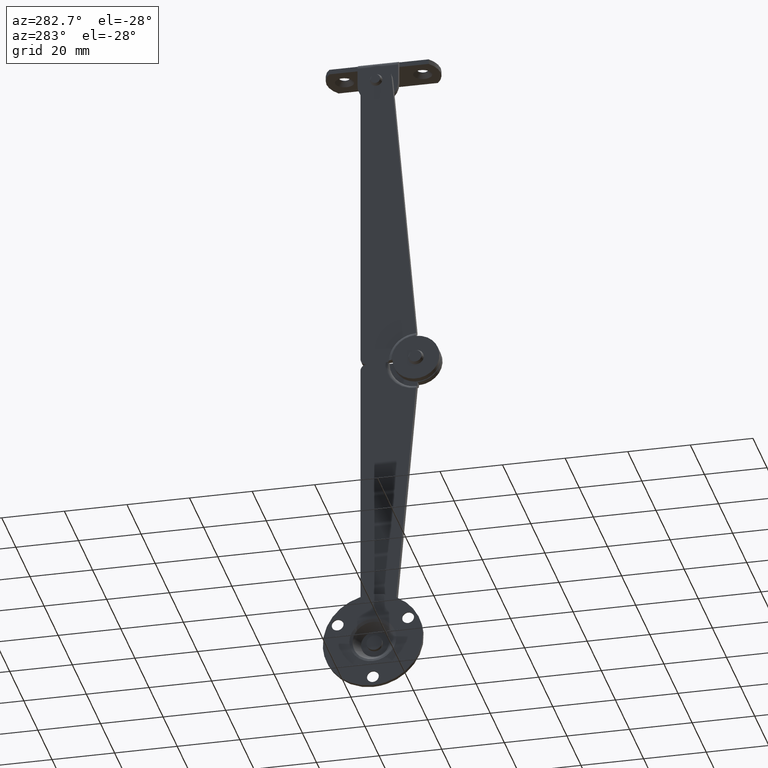
[diagram: clean part render]
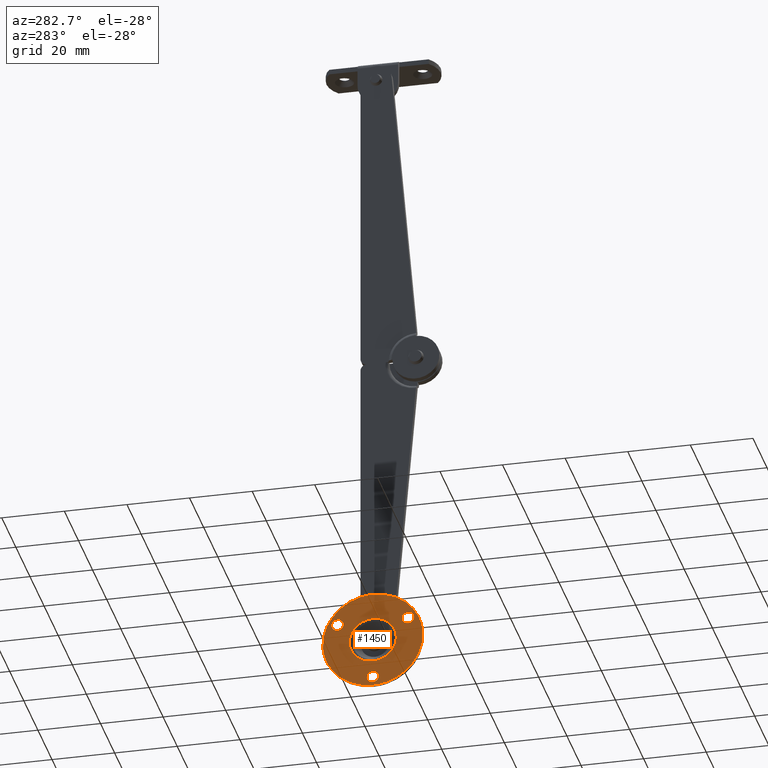
[diagram: same view with one face highlighted and labeled with its STEP entity id]
A machine part, auxiliary view. The second image highlights one B-rep face of the part: STEP entity #1450.
In plain terms, the highlighted face is a freeform B-spline surface patch.
Its self-contained STEP definition (entity closure, byte-faithful):
#388=CARTESIAN_POINT('',(2.428613E-017,-0.152473200685250,-93.350935568531526));
#389=VERTEX_POINT('',#388);
#395=CARTESIAN_POINT('',(0.0,1.741669750802305,-91.600007629394597));
#396=VERTEX_POINT('',#395);
#397=CARTESIAN_POINT('',(0.0,1.741669750802305,-91.600007629394597));
#398=CARTESIAN_POINT('',(0.0,-0.014672388922405,-91.600007629394582));
#399=CARTESIAN_POINT('',(0.0,-0.152473200685263,-93.350935568531526));
#407=(BOUNDED_CURVE()B_SPLINE_CURVE(2,(#397,#398,#399),.UNSPECIFIED.,.F.,.U.)B_SPLINE_CURVE_WITH_KNOTS((3,3),(0.0,0.236331320635593),.UNSPECIFIED.)CURVE()GEOMETRIC_REPRESENTATION_ITEM()RATIONAL_B_SPLINE_CURVE((1.0,0.723120635170428,0.969723397916191))REPRESENTATION_ITEM(''));
#408=EDGE_CURVE('',#396,#389,#407,.T.);
#410=CARTESIAN_POINT('',(-1.084202E-017,3.635812702289861,-93.649079690257665));
#411=VERTEX_POINT('',#410);
#412=CARTESIAN_POINT('',(0.0,3.635812702289875,-93.649079690257679));
#413=CARTESIAN_POINT('',(0.0,3.641669750802305,-93.574658721686419));
#414=CARTESIAN_POINT('',(0.0,3.641669750802305,-93.500007629394602));
#415=CARTESIAN_POINT('',(0.0,3.641669750802306,-91.600007629394597));
#416=CARTESIAN_POINT('',(0.0,1.741669750802305,-91.600007629394597));
#424=(BOUNDED_CURVE()B_SPLINE_CURVE(2,(#412,#413,#414,#415,#416),.UNSPECIFIED.,.F.,.U.)B_SPLINE_CURVE_WITH_KNOTS((3,2,3),(0.736331320635594,0.750000000000000,1.0),.UNSPECIFIED.)CURVE()GEOMETRIC_REPRESENTATION_ITEM()RATIONAL_B_SPLINE_CURVE((0.969723397916194,0.983986146016121,1.0,0.707106781186547,1.0))REPRESENTATION_ITEM(''));
#425=EDGE_CURVE('',#411,#396,#424,.T.);
#505=CARTESIAN_POINT('',(0.0,1.741669750802305,-95.400007629394594));
#506=VERTEX_POINT('',#505);
#507=CARTESIAN_POINT('',(0.0,1.741669750802305,-95.400007629394594));
#508=CARTESIAN_POINT('',(0.0,3.498011890527033,-95.400007629394594));
#509=CARTESIAN_POINT('',(0.0,3.635812702289874,-93.649079690257665));
#517=(BOUNDED_CURVE()B_SPLINE_CURVE(2,(#507,#508,#509),.UNSPECIFIED.,.F.,.U.)B_SPLINE_CURVE_WITH_KNOTS((3,3),(0.500000000000000,0.736331320635595),.UNSPECIFIED.)CURVE()GEOMETRIC_REPRESENTATION_ITEM()RATIONAL_B_SPLINE_CURVE((1.0,0.723120635170426,0.969723397916195))REPRESENTATION_ITEM(''));
#518=EDGE_CURVE('',#506,#411,#517,.T.);
#520=CARTESIAN_POINT('',(0.0,-0.152473200685263,-93.350935568531511));
#521=CARTESIAN_POINT('',(0.0,-0.158330249197695,-93.425356537102772));
#522=CARTESIAN_POINT('',(0.0,-0.158330249197695,-93.500007629394602));
#523=CARTESIAN_POINT('',(0.0,-0.158330249197695,-95.400007629394594));
#524=CARTESIAN_POINT('',(0.0,1.741669750802305,-95.400007629394594));
#532=(BOUNDED_CURVE()B_SPLINE_CURVE(2,(#520,#521,#522,#523,#524),.UNSPECIFIED.,.F.,.U.)B_SPLINE_CURVE_WITH_KNOTS((3,2,3),(0.236331320635593,0.250000000000000,0.500000000000000),.UNSPECIFIED.)CURVE()GEOMETRIC_REPRESENTATION_ITEM()RATIONAL_B_SPLINE_CURVE((0.969723397916192,0.983986146016119,1.0,0.707106781186547,1.0))REPRESENTATION_ITEM(''));
#533=EDGE_CURVE('',#389,#506,#532,.T.);
#578=CARTESIAN_POINT('',(6.938894E-018,22.364187297710149,-93.350935568531526));
#579=VERTEX_POINT('',#578);
#585=CARTESIAN_POINT('',(0.0,24.258330249197702,-91.600007629394597));
#586=VERTEX_POINT('',#585);
#587=CARTESIAN_POINT('',(0.0,24.258330249197702,-91.600007629394597));
#588=CARTESIAN_POINT('',(0.0,22.501988109472993,-91.600007629394597));
#589=CARTESIAN_POINT('',(0.0,22.364187297710131,-93.350935568531511));
#597=(BOUNDED_CURVE()B_SPLINE_CURVE(2,(#587,#588,#589),.UNSPECIFIED.,.F.,.U.)B_SPLINE_CURVE_WITH_KNOTS((3,3),(0.0,0.236331320635593),.UNSPECIFIED.)CURVE()GEOMETRIC_REPRESENTATION_ITEM()RATIONAL_B_SPLINE_CURVE((1.0,0.723120635170428,0.969723397916192))REPRESENTATION_ITEM(''));
#598=EDGE_CURVE('',#586,#579,#597,.T.);
#600=CARTESIAN_POINT('',(-2.818926E-017,26.152473200685261,-93.649079690257665));
#601=VERTEX_POINT('',#600);
#602=CARTESIAN_POINT('',(0.0,26.152473200685268,-93.649079690257679));
#603=CARTESIAN_POINT('',(0.0,26.158330249197697,-93.574658721686419));
#604=CARTESIAN_POINT('',(0.0,26.158330249197700,-93.500007629394602));
#605=CARTESIAN_POINT('',(0.0,26.158330249197711,-91.600007629394597));
#606=CARTESIAN_POINT('',(0.0,24.258330249197702,-91.600007629394597));
#614=(BOUNDED_CURVE()B_SPLINE_CURVE(2,(#602,#603,#604,#605,#606),.UNSPECIFIED.,.F.,.U.)B_SPLINE_CURVE_WITH_KNOTS((3,2,3),(0.736331320635594,0.750000000000000,1.0),.UNSPECIFIED.)CURVE()GEOMETRIC_REPRESENTATION_ITEM()RATIONAL_B_SPLINE_CURVE((0.969723397916194,0.983986146016121,1.0,0.707106781186547,1.0))REPRESENTATION_ITEM(''));
#615=EDGE_CURVE('',#601,#586,#614,.T.);
#695=CARTESIAN_POINT('',(0.0,24.258330249197702,-95.400007629394594));
#696=VERTEX_POINT('',#695);
#697=CARTESIAN_POINT('',(0.0,24.258330249197702,-95.400007629394594));
#698=CARTESIAN_POINT('',(0.0,26.014672388922442,-95.400007629394594));
#699=CARTESIAN_POINT('',(0.0,26.152473200685272,-93.649079690257665));
#707=(BOUNDED_CURVE()B_SPLINE_CURVE(2,(#697,#698,#699),.UNSPECIFIED.,.F.,.U.)B_SPLINE_CURVE_WITH_KNOTS((3,3),(0.500000000000000,0.736331320635595),.UNSPECIFIED.)CURVE()GEOMETRIC_REPRESENTATION_ITEM()RATIONAL_B_SPLINE_CURVE((1.0,0.723120635170426,0.969723397916195))REPRESENTATION_ITEM(''));
#708=EDGE_CURVE('',#696,#601,#707,.T.);
#710=CARTESIAN_POINT('',(0.0,22.364187297710139,-93.350935568531511));
#711=CARTESIAN_POINT('',(0.0,22.358330249197703,-93.425356537102786));
#712=CARTESIAN_POINT('',(0.0,22.358330249197699,-93.500007629394602));
#713=CARTESIAN_POINT('',(0.0,22.358330249197710,-95.400007629394594));
#714=CARTESIAN_POINT('',(0.0,24.258330249197702,-95.400007629394594));
#722=(BOUNDED_CURVE()B_SPLINE_CURVE(2,(#710,#711,#712,#713,#714),.UNSPECIFIED.,.F.,.U.)B_SPLINE_CURVE_WITH_KNOTS((3,2,3),(0.236331320635592,0.250000000000000,0.500000000000000),.UNSPECIFIED.)CURVE()GEOMETRIC_REPRESENTATION_ITEM()RATIONAL_B_SPLINE_CURVE((0.969723397916189,0.983986146016118,1.0,0.707106781186547,1.0))REPRESENTATION_ITEM(''));
#723=EDGE_CURVE('',#579,#696,#722,.T.);
#768=CARTESIAN_POINT('',(-1.084202E-017,11.105857048512441,-112.850935568531500));
#769=VERTEX_POINT('',#768);
#775=CARTESIAN_POINT('',(0.0,13.0,-111.100007629394600));
#776=VERTEX_POINT('',#775);
#777=CARTESIAN_POINT('',(0.0,13.0,-111.100007629394600));
#778=CARTESIAN_POINT('',(0.0,11.243657860275274,-111.100007629394600));
#779=CARTESIAN_POINT('',(0.0,11.105857048512430,-112.850935568531530));
#787=(BOUNDED_CURVE()B_SPLINE_CURVE(2,(#777,#778,#779),.UNSPECIFIED.,.F.,.U.)B_SPLINE_CURVE_WITH_KNOTS((3,3),(0.0,0.236331320635594),.UNSPECIFIED.)CURVE()GEOMETRIC_REPRESENTATION_ITEM()RATIONAL_B_SPLINE_CURVE((1.0,0.723120635170427,0.969723397916194))REPRESENTATION_ITEM(''));
#788=EDGE_CURVE('',#776,#769,#787,.T.);
#790=CARTESIAN_POINT('',(-2.818926E-017,14.894142951487559,-113.149079690257690));
#791=VERTEX_POINT('',#790);
#792=CARTESIAN_POINT('',(0.0,14.894142951487572,-113.149079690257680));
#793=CARTESIAN_POINT('',(0.0,14.900000000000000,-113.074658721686460));
#794=CARTESIAN_POINT('',(0.0,14.900000000000000,-113.000007629394600));
#795=CARTESIAN_POINT('',(0.0,14.900000000000004,-111.100007629394580));
#796=CARTESIAN_POINT('',(0.0,13.0,-111.100007629394600));
#804=(BOUNDED_CURVE()B_SPLINE_CURVE(2,(#792,#793,#794,#795,#796),.UNSPECIFIED.,.F.,.U.)B_SPLINE_CURVE_WITH_KNOTS((3,2,3),(0.736331320635594,0.750000000000000,1.0),.UNSPECIFIED.)CURVE()GEOMETRIC_REPRESENTATION_ITEM()RATIONAL_B_SPLINE_CURVE((0.969723397916194,0.983986146016121,1.0,0.707106781186547,1.0))REPRESENTATION_ITEM(''));
#805=EDGE_CURVE('',#791,#776,#804,.T.);
#885=CARTESIAN_POINT('',(0.0,13.0,-114.900007629394590));
#886=VERTEX_POINT('',#885);
#887=CARTESIAN_POINT('',(0.0,13.0,-114.900007629394590));
#888=CARTESIAN_POINT('',(0.0,14.756342139724710,-114.900007629394620));
#889=CARTESIAN_POINT('',(0.0,14.894142951487570,-113.149079690257680));
#897=(BOUNDED_CURVE()B_SPLINE_CURVE(2,(#887,#888,#889),.UNSPECIFIED.,.F.,.U.)B_SPLINE_CURVE_WITH_KNOTS((3,3),(0.500000000000000,0.736331320635593),.UNSPECIFIED.)CURVE()GEOMETRIC_REPRESENTATION_ITEM()RATIONAL_B_SPLINE_CURVE((1.0,0.723120635170428,0.969723397916192))REPRESENTATION_ITEM(''));
#898=EDGE_CURVE('',#886,#791,#897,.T.);
#900=CARTESIAN_POINT('',(0.0,11.105857048512433,-112.850935568531540));
#901=CARTESIAN_POINT('',(0.0,11.100000000000003,-112.925356537102790));
#902=CARTESIAN_POINT('',(0.0,11.100000000000000,-113.000007629394600));
#903=CARTESIAN_POINT('',(0.0,11.099999999999998,-114.900007629394610));
#904=CARTESIAN_POINT('',(0.0,13.0,-114.900007629394590));
#912=(BOUNDED_CURVE()B_SPLINE_CURVE(2,(#900,#901,#902,#903,#904),.UNSPECIFIED.,.F.,.U.)B_SPLINE_CURVE_WITH_KNOTS((3,2,3),(0.236331320635596,0.250000000000000,0.500000000000000),.UNSPECIFIED.)CURVE()GEOMETRIC_REPRESENTATION_ITEM()RATIONAL_B_SPLINE_CURVE((0.969723397916197,0.983986146016122,1.0,0.707106781186547,1.0))REPRESENTATION_ITEM(''));
#913=EDGE_CURVE('',#769,#886,#912,.T.);
#1222=CARTESIAN_POINT('',(3.779633E-016,7.343101737416354,-104.924412033659610));
#1223=VERTEX_POINT('',#1222);
#1224=CARTESIAN_POINT('',(0.0,13.0,-92.499990502988879));
#1225=VERTEX_POINT('',#1224);
#1226=CARTESIAN_POINT('',(3.779633E-016,7.343101737416354,-104.924412033659560));
#1227=CARTESIAN_POINT('',(3.457584E-016,5.499982883089035,-102.807133479738340));
#1228=CARTESIAN_POINT('',(2.750259E-016,5.499982881146673,-100.000007622820110));
#1229=CARTESIAN_POINT('',(8.604424E-017,5.499982875957111,-92.499990500932014));
#1230=CARTESIAN_POINT('',(0.0,13.0,-92.499990502988879));
#1238=(BOUNDED_CURVE()B_SPLINE_CURVE(2,(#1226,#1227,#1228,#1229,#1230),.UNSPECIFIED.,.F.,.U.)B_SPLINE_CURVE_WITH_KNOTS((3,2,3),(0.635432807293815,0.750000000000000,1.0),.UNSPECIFIED.)CURVE()GEOMETRIC_REPRESENTATION_ITEM()RATIONAL_B_SPLINE_CURVE((0.854573535031613,0.865776184631458,1.0,0.707106781186547,1.0))REPRESENTATION_ITEM(''));
#1239=EDGE_CURVE('',#1223,#1225,#1238,.T.);
#1241=CARTESIAN_POINT('',(3.628448E-016,18.656898262583638,-95.075603225129598));
#1242=VERTEX_POINT('',#1241);
#1243=CARTESIAN_POINT('',(0.0,13.0,-92.499990502988879));
#1244=CARTESIAN_POINT('',(1.814224E-016,16.414793495978152,-92.499990507506453));
#1245=CARTESIAN_POINT('',(3.628448E-016,18.656898262583638,-95.075603225129598));
#1253=(BOUNDED_CURVE()B_SPLINE_CURVE(2,(#1243,#1244,#1245),.UNSPECIFIED.,.F.,.U.)B_SPLINE_CURVE_WITH_KNOTS((3,3),(0.0,0.135432807293815),.UNSPECIFIED.)CURVE()GEOMETRIC_REPRESENTATION_ITEM()RATIONAL_B_SPLINE_CURVE((1.0,0.841330596555090,0.854573535031613))REPRESENTATION_ITEM(''));
#1254=EDGE_CURVE('',#1225,#1242,#1253,.T.);
#1317=CARTESIAN_POINT('',(0.0,13.0,-107.500024755800300));
#1318=VERTEX_POINT('',#1317);
#1319=CARTESIAN_POINT('',(0.0,13.0,-107.500024755800300));
#1320=CARTESIAN_POINT('',(1.889816E-016,9.585206504021850,-107.500024751282720));
#1321=CARTESIAN_POINT('',(3.779633E-016,7.343101737416354,-104.924412033659560));
#1329=(BOUNDED_CURVE()B_SPLINE_CURVE(2,(#1319,#1320,#1321),.UNSPECIFIED.,.F.,.U.)B_SPLINE_CURVE_WITH_KNOTS((3,3),(0.500000000000000,0.635432807293815),.UNSPECIFIED.)CURVE()GEOMETRIC_REPRESENTATION_ITEM()RATIONAL_B_SPLINE_CURVE((1.0,0.841330596555090,0.854573535031613))REPRESENTATION_ITEM(''));
#1330=EDGE_CURVE('',#1318,#1223,#1329,.T.);
#1337=CARTESIAN_POINT('',(3.628448E-016,18.656898262583638,-95.075603225129598));
#1338=CARTESIAN_POINT('',(3.319281E-016,20.500017116910971,-97.192881779050822));
#1339=CARTESIAN_POINT('',(2.640248E-016,20.500017118853329,-100.000007635969000));
#1340=CARTESIAN_POINT('',(8.260247E-017,20.500017124042888,-107.500024757857180));
#1341=CARTESIAN_POINT('',(0.0,13.0,-107.500024755800300));
#1349=(BOUNDED_CURVE()B_SPLINE_CURVE(2,(#1337,#1338,#1339,#1340,#1341),.UNSPECIFIED.,.F.,.U.)B_SPLINE_CURVE_WITH_KNOTS((3,2,3),(0.135432807293815,0.250000000000000,0.500000000000000),.UNSPECIFIED.)CURVE()GEOMETRIC_REPRESENTATION_ITEM()RATIONAL_B_SPLINE_CURVE((0.854573535031613,0.865776184631457,1.0,0.707106781186547,1.0))REPRESENTATION_ITEM(''));
#1350=EDGE_CURVE('',#1242,#1318,#1349,.T.);
#1355=CARTESIAN_POINT('',(0.0,-4.593516344022616,-117.598407567372400));
#1356=CARTESIAN_POINT('',(0.0,-4.593516344022616,-82.401606833109923));
#1357=CARTESIAN_POINT('',(0.0,30.593516916227191,-117.598407567372400));
#1358=CARTESIAN_POINT('',(0.0,30.593516916227191,-82.401606833109923));
#1359=B_SPLINE_SURFACE_WITH_KNOTS('',1,1,((#1355,#1357),(#1356,#1358)),.UNSPECIFIED.,.F.,.F.,.U.,(2,2),(2,2),(0.0,35.196800734262453),(0.0,35.187033260249812),.UNSPECIFIED.);
#1360=CARTESIAN_POINT('',(-1.214306E-017,28.950677339719348,-101.255353161176000));
#1361=VERTEX_POINT('',#1360);
#1362=CARTESIAN_POINT('',(0.0,13.0,-84.000007629394588));
#1363=VERTEX_POINT('',#1362);
#1364=CARTESIAN_POINT('',(0.0,28.950677339719341,-101.255353161176020));
#1365=CARTESIAN_POINT('',(0.0,28.999999999999993,-100.628649341585570));
#1366=CARTESIAN_POINT('',(0.0,29.0,-100.000007629394600));
#1367=CARTESIAN_POINT('',(0.0,29.0,-84.000007629394588));
#1368=CARTESIAN_POINT('',(0.0,13.0,-84.000007629394588));
#1376=(BOUNDED_CURVE()B_SPLINE_CURVE(2,(#1364,#1365,#1366,#1367,#1368),.UNSPECIFIED.,.F.,.U.)B_SPLINE_CURVE_WITH_KNOTS((3,2,3),(0.736331300631306,0.750000000000000,1.0),.UNSPECIFIED.)CURVE()GEOMETRIC_REPRESENTATION_ITEM()RATIONAL_B_SPLINE_CURVE((0.969723356168767,0.983986122579640,1.0,0.707106781186548,1.0))REPRESENTATION_ITEM(''));
#1377=EDGE_CURVE('',#1361,#1363,#1376,.T.);
#1378=ORIENTED_EDGE('',*,*,#1377,.F.);
#1379=CARTESIAN_POINT('',(0.0,13.0,-116.000007629394600));
#1380=VERTEX_POINT('',#1379);
#1381=CARTESIAN_POINT('',(0.0,13.0,-116.000007629394600));
#1382=CARTESIAN_POINT('',(0.0,27.790247866404897,-116.000007629394600));
#1383=CARTESIAN_POINT('',(0.0,28.950677339719341,-101.255353161176020));
#1391=(BOUNDED_CURVE()B_SPLINE_CURVE(2,(#1381,#1382,#1383),.UNSPECIFIED.,.F.,.U.)B_SPLINE_CURVE_WITH_KNOTS((3,3),(0.500000000000000,0.736331300631306),.UNSPECIFIED.)CURVE()GEOMETRIC_REPRESENTATION_ITEM()RATIONAL_B_SPLINE_CURVE((1.0,0.723120658606908,0.969723356168767))REPRESENTATION_ITEM(''));
#1392=EDGE_CURVE('',#1380,#1361,#1391,.T.);
#1393=ORIENTED_EDGE('',*,*,#1392,.F.);
#1394=CARTESIAN_POINT('',(-1.214306E-017,-2.950677339719350,-98.744662097613173));
#1395=VERTEX_POINT('',#1394);
#1396=CARTESIAN_POINT('',(0.0,-2.950677339719353,-98.744662097613173));
#1397=CARTESIAN_POINT('',(0.0,-3.000000000000001,-99.371365917203619));
#1398=CARTESIAN_POINT('',(0.0,-3.000000000000001,-100.000007629394600));
#1399=CARTESIAN_POINT('',(0.0,-3.0,-116.000007629394600));
#1400=CARTESIAN_POINT('',(0.0,13.0,-116.000007629394600));
#1408=(BOUNDED_CURVE()B_SPLINE_CURVE(2,(#1396,#1397,#1398,#1399,#1400),.UNSPECIFIED.,.F.,.U.)B_SPLINE_CURVE_WITH_KNOTS((3,2,3),(0.236331300631306,0.250000000000000,0.500000000000000),.UNSPECIFIED.)CURVE()GEOMETRIC_REPRESENTATION_ITEM()RATIONAL_B_SPLINE_CURVE((0.969723356168767,0.983986122579640,1.0,0.707106781186548,1.0))REPRESENTATION_ITEM(''));
#1409=EDGE_CURVE('',#1395,#1380,#1408,.T.);
#1410=ORIENTED_EDGE('',*,*,#1409,.F.);
#1411=CARTESIAN_POINT('',(0.0,13.0,-84.000007629394588));
#1412=CARTESIAN_POINT('',(0.0,-1.790247866404904,-84.000007629394588));
#1413=CARTESIAN_POINT('',(0.0,-2.950677339719353,-98.744662097613158));
#1421=(BOUNDED_CURVE()B_SPLINE_CURVE(2,(#1411,#1412,#1413),.UNSPECIFIED.,.F.,.U.)B_SPLINE_CURVE_WITH_KNOTS((3,3),(0.0,0.236331300631306),.UNSPECIFIED.)CURVE()GEOMETRIC_REPRESENTATION_ITEM()RATIONAL_B_SPLINE_CURVE((1.0,0.723120658606908,0.969723356168767))REPRESENTATION_ITEM(''));
#1422=EDGE_CURVE('',#1363,#1395,#1421,.T.);
#1423=ORIENTED_EDGE('',*,*,#1422,.F.);
#1424=EDGE_LOOP('',(#1378,#1393,#1410,#1423));
#1425=FACE_OUTER_BOUND('',#1424,.T.);
#1426=ORIENTED_EDGE('',*,*,#1254,.F.);
#1427=ORIENTED_EDGE('',*,*,#1239,.F.);
#1428=ORIENTED_EDGE('',*,*,#1330,.F.);
#1429=ORIENTED_EDGE('',*,*,#1350,.F.);
#1430=EDGE_LOOP('',(#1426,#1427,#1428,#1429));
#1431=FACE_BOUND('',#1430,.T.);
#1432=ORIENTED_EDGE('',*,*,#898,.T.);
#1433=ORIENTED_EDGE('',*,*,#805,.T.);
#1434=ORIENTED_EDGE('',*,*,#788,.T.);
#1435=ORIENTED_EDGE('',*,*,#913,.T.);
#1436=EDGE_LOOP('',(#1432,#1433,#1434,#1435));
#1437=FACE_BOUND('',#1436,.T.);
#1438=ORIENTED_EDGE('',*,*,#708,.T.);
#1439=ORIENTED_EDGE('',*,*,#615,.T.);
#1440=ORIENTED_EDGE('',*,*,#598,.T.);
#1441=ORIENTED_EDGE('',*,*,#723,.T.);
#1442=EDGE_LOOP('',(#1438,#1439,#1440,#1441));
#1443=FACE_BOUND('',#1442,.T.);
#1444=ORIENTED_EDGE('',*,*,#518,.T.);
#1445=ORIENTED_EDGE('',*,*,#425,.T.);
#1446=ORIENTED_EDGE('',*,*,#408,.T.);
#1447=ORIENTED_EDGE('',*,*,#533,.T.);
#1448=EDGE_LOOP('',(#1444,#1445,#1446,#1447));
#1449=FACE_BOUND('',#1448,.T.);
#1450=ADVANCED_FACE('',(#1425,#1431,#1437,#1443,#1449),#1359,.T.);